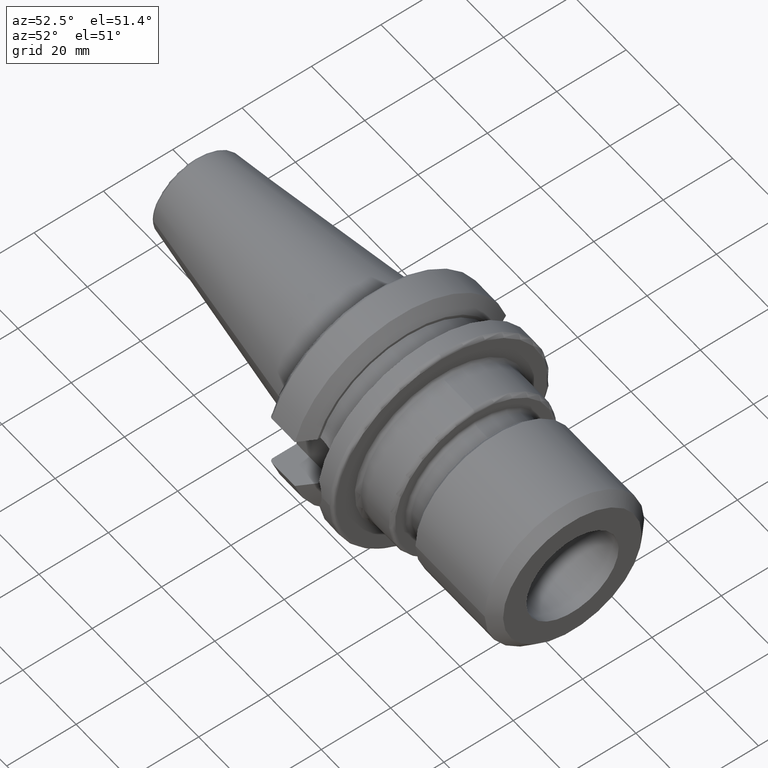
[diagram: clean part render]
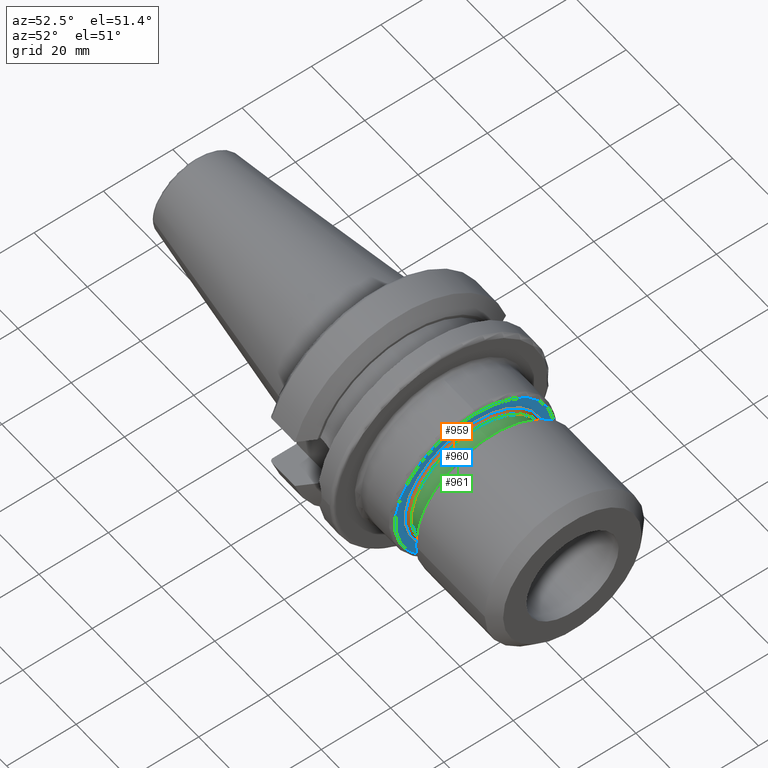
[diagram: same view with three faces highlighted in distinct colors, each labeled with its STEP entity id]
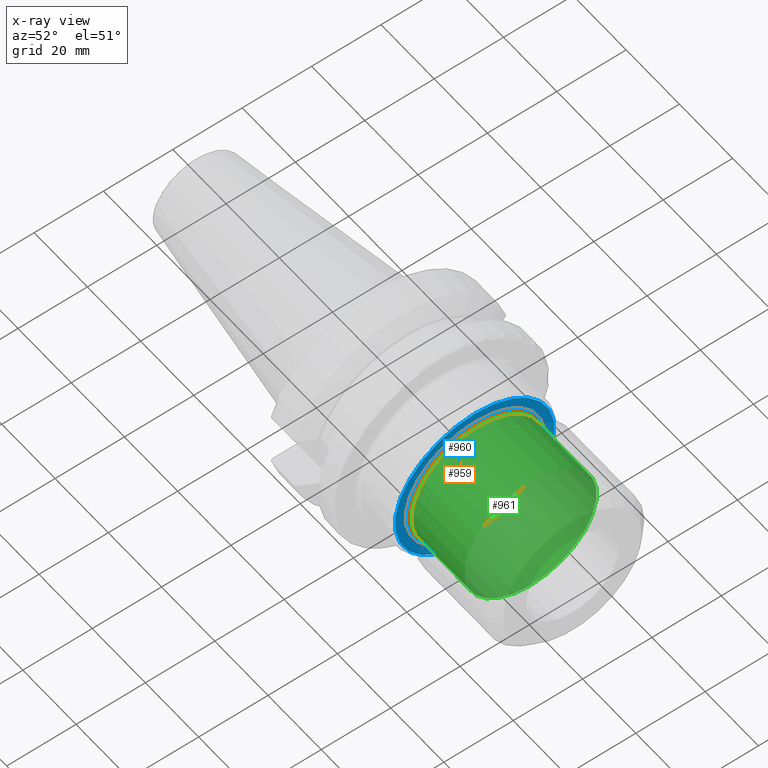
[diagram: x-ray of the same camera — body ghosted, the three highlighted faces saturated]
A machine part, auxiliary view with three faces highlighted in distinct colors.
The next image is the same camera in x-ray (body ghosted, the three faces saturated) — at least one of them is partly hidden behind the body in this view.
Their STEP definitions:

[orange] entity #959 — the highlighted toroidal blend (fillet) surface has major radius 20.05 mm and minor (blend) radius 1 mm.
#222=FACE_OUTER_BOUND('',#284,.T.);
#284=EDGE_LOOP('',(#673,#674,#675,#676));
#358=CIRCLE('',#1102,20.05);
#359=CIRCLE('',#1103,1.);
#360=CIRCLE('',#1104,19.05);
#430=VERTEX_POINT('',#1576);
#431=VERTEX_POINT('',#1578);
#525=EDGE_CURVE('',#430,#430,#358,.T.);
#526=EDGE_CURVE('',#430,#431,#359,.T.);
#527=EDGE_CURVE('',#431,#431,#360,.T.);
#673=ORIENTED_EDGE('',*,*,#525,.T.);
#674=ORIENTED_EDGE('',*,*,#526,.T.);
#675=ORIENTED_EDGE('',*,*,#527,.T.);
#676=ORIENTED_EDGE('',*,*,#526,.F.);
#948=TOROIDAL_SURFACE('',#1101,20.05,1.);
#959=ADVANCED_FACE('',(#222),#948,.F.);
#1101=AXIS2_PLACEMENT_3D('',#1575,#1252,#1253);
#1102=AXIS2_PLACEMENT_3D('',#1577,#1254,#1255);
#1103=AXIS2_PLACEMENT_3D('',#1579,#1256,#1257);
#1104=AXIS2_PLACEMENT_3D('',#1580,#1258,#1259);
#1252=DIRECTION('center_axis',(1.,0.,0.));
#1253=DIRECTION('ref_axis',(0.,0.,-1.));
#1254=DIRECTION('center_axis',(1.,0.,0.));
#1255=DIRECTION('ref_axis',(0.,1.22464679914735E-16,1.));
#1256=DIRECTION('center_axis',(0.,-1.,-1.22464679914735E-16));
#1257=DIRECTION('ref_axis',(0.,-1.22464679914735E-16,1.));
#1258=DIRECTION('center_axis',(-1.,0.,0.));
#1259=DIRECTION('ref_axis',(0.,1.22464679914735E-16,1.));
#1575=CARTESIAN_POINT('Origin',(40.5,0.,0.));
#1576=CARTESIAN_POINT('',(39.5,-2.45541683229044E-15,20.05));
#1577=CARTESIAN_POINT('Origin',(39.5,0.,0.));
#1578=CARTESIAN_POINT('',(40.5,-2.33295215237571E-15,19.05));
#1579=CARTESIAN_POINT('Origin',(40.5,-2.45541683229044E-15,20.05));
#1580=CARTESIAN_POINT('Origin',(40.5,0.,0.));

[blue] entity #960 — the highlighted planar face has unit normal (1, 0, 0).
#68=FACE_BOUND('',#286,.T.);
#79=PLANE('',#1105);
#223=FACE_OUTER_BOUND('',#285,.T.);
#285=EDGE_LOOP('',(#677));
#286=EDGE_LOOP('',(#678));
#358=CIRCLE('',#1102,20.05);
#361=CIRCLE('',#1106,23.);
#430=VERTEX_POINT('',#1576);
#432=VERTEX_POINT('',#1582);
#525=EDGE_CURVE('',#430,#430,#358,.T.);
#528=EDGE_CURVE('',#432,#432,#361,.T.);
#677=ORIENTED_EDGE('',*,*,#528,.F.);
#678=ORIENTED_EDGE('',*,*,#525,.F.);
#960=ADVANCED_FACE('',(#223,#68),#79,.T.);
#1102=AXIS2_PLACEMENT_3D('',#1577,#1254,#1255);
#1105=AXIS2_PLACEMENT_3D('',#1581,#1260,#1261);
#1106=AXIS2_PLACEMENT_3D('',#1583,#1262,#1263);
#1254=DIRECTION('center_axis',(1.,0.,0.));
#1255=DIRECTION('ref_axis',(0.,1.22464679914735E-16,1.));
#1260=DIRECTION('center_axis',(1.,0.,0.));
#1261=DIRECTION('ref_axis',(0.,0.,-1.));
#1262=DIRECTION('center_axis',(-1.,0.,0.));
#1263=DIRECTION('ref_axis',(0.,1.22464679914735E-16,1.));
#1576=CARTESIAN_POINT('',(39.5,-2.45541683229044E-15,20.05));
#1577=CARTESIAN_POINT('Origin',(39.5,0.,0.));
#1581=CARTESIAN_POINT('Origin',(39.5,0.,-19.05));
#1582=CARTESIAN_POINT('',(39.5,-2.81668763803891E-15,23.));
#1583=CARTESIAN_POINT('Origin',(39.5,0.,0.));

[green] entity #961 — the highlighted cylindrical surface (bore or boss wall) has radius 19.05 mm, axis along (1, 0, 0).
#100=LINE('',#1589,#151);
#151=VECTOR('',#1270,19.05);
#202=CYLINDRICAL_SURFACE('',#1107,19.05);
#224=FACE_OUTER_BOUND('',#287,.T.);
#287=EDGE_LOOP('',(#679,#680,#681,#682,#683));
#360=CIRCLE('',#1104,19.05);
#362=CIRCLE('',#1108,19.05);
#363=CIRCLE('',#1109,19.05);
#431=VERTEX_POINT('',#1578);
#433=VERTEX_POINT('',#1585);
#434=VERTEX_POINT('',#1586);
#527=EDGE_CURVE('',#431,#431,#360,.T.);
#529=EDGE_CURVE('',#433,#434,#362,.T.);
#530=EDGE_CURVE('',#434,#433,#363,.T.);
#531=EDGE_CURVE('',#434,#431,#100,.T.);
#679=ORIENTED_EDGE('',*,*,#529,.F.);
#680=ORIENTED_EDGE('',*,*,#530,.F.);
#681=ORIENTED_EDGE('',*,*,#531,.T.);
#682=ORIENTED_EDGE('',*,*,#527,.F.);
#683=ORIENTED_EDGE('',*,*,#531,.F.);
#961=ADVANCED_FACE('',(#224),#202,.T.);
#1104=AXIS2_PLACEMENT_3D('',#1580,#1258,#1259);
#1107=AXIS2_PLACEMENT_3D('',#1584,#1264,#1265);
#1108=AXIS2_PLACEMENT_3D('',#1587,#1266,#1267);
#1109=AXIS2_PLACEMENT_3D('',#1588,#1268,#1269);
#1258=DIRECTION('center_axis',(-1.,0.,0.));
#1259=DIRECTION('ref_axis',(0.,1.22464679914735E-16,1.));
#1264=DIRECTION('center_axis',(1.,0.,0.));
#1265=DIRECTION('ref_axis',(0.,0.,-1.));
#1266=DIRECTION('center_axis',(1.,0.,0.));
#1267=DIRECTION('ref_axis',(0.,0.,1.));
#1268=DIRECTION('center_axis',(1.,0.,0.));
#1269=DIRECTION('ref_axis',(0.,0.,1.));
#1270=DIRECTION('',(-1.,0.,0.));
#1578=CARTESIAN_POINT('',(40.5,-2.33295215237571E-15,19.05));
#1580=CARTESIAN_POINT('Origin',(40.5,0.,0.));
#1584=CARTESIAN_POINT('Origin',(51.,0.,0.));
#1585=CARTESIAN_POINT('',(60.5,2.33295215237571E-15,-19.05));
#1586=CARTESIAN_POINT('',(60.5,-2.33295215237571E-15,19.05));
#1587=CARTESIAN_POINT('Origin',(60.5,0.,0.));
#1588=CARTESIAN_POINT('Origin',(60.5,0.,0.));
#1589=CARTESIAN_POINT('',(51.,-2.33295215237571E-15,19.05));